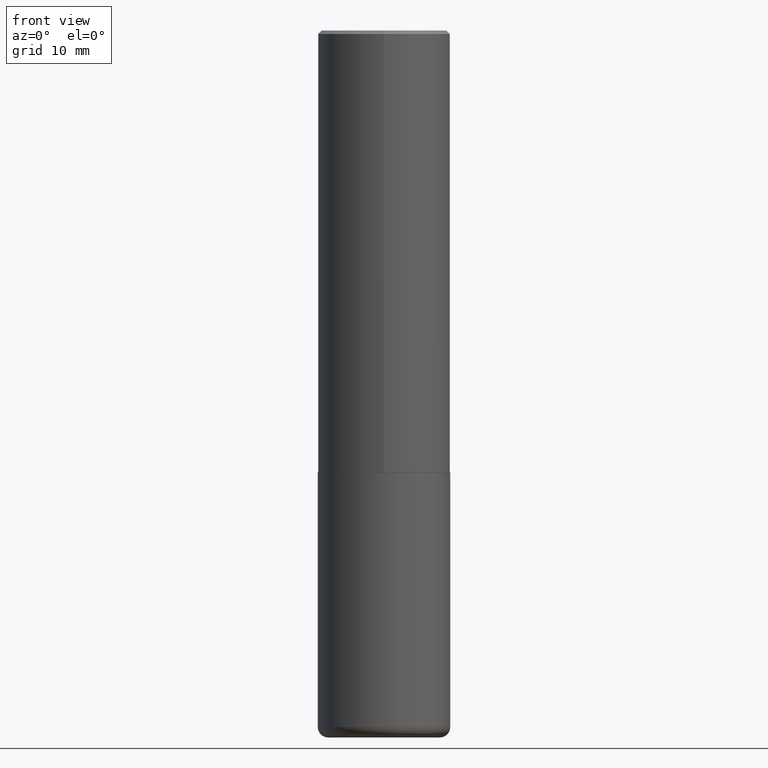
[diagram: clean part render]
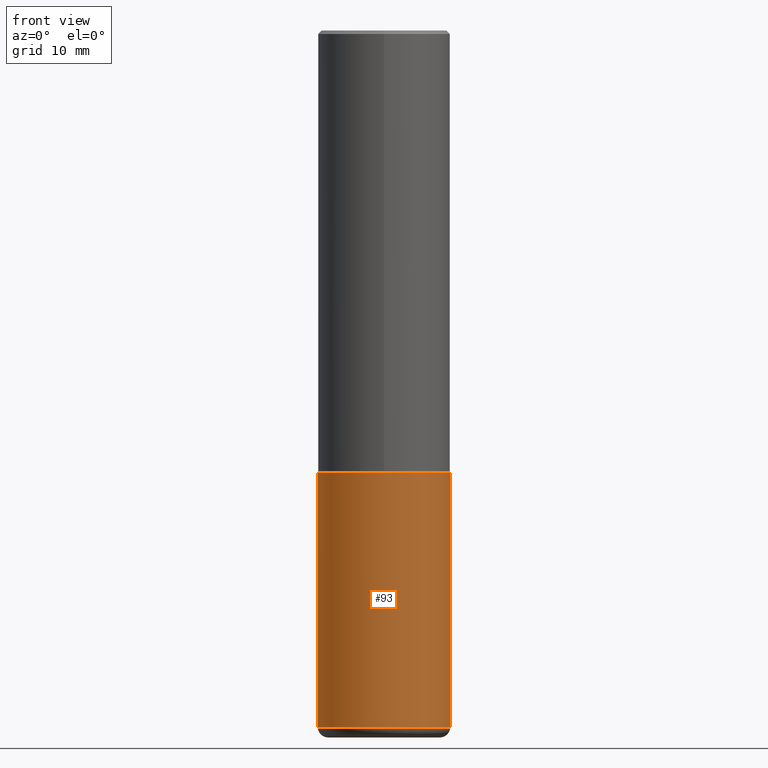
[diagram: same view with one face highlighted and labeled with its STEP entity id]
A machine part, front view. The second image highlights one B-rep face of the part: STEP entity #93.
In plain terms, the highlighted cylindrical surface (partial cylindrical patch) has radius 9.525 mm, axis along (-0, 0, 1).
Its self-contained STEP definition (entity closure, byte-faithful):
#1 = CIRCLE ( 'NONE', #268, 0.3750000000000000555 ) ;
#3 = ORIENTED_EDGE ( 'NONE', *, *, #190, .F. ) ;
#6 = DIRECTION ( 'NONE',  ( -2.445468806185136597E-29, 3.491481338843145583E-15, 1.000000000000000000 ) ) ;
#29 = LINE ( 'NONE', #99, #371 ) ;
#40 = CARTESIAN_POINT ( 'NONE',  ( -0.3750000000000000555, -8.578034651974553781E-15, -2.500000000000000000 ) ) ;
#86 = EDGE_CURVE ( 'NONE', #139, #311, #146, .T. ) ;
#93 = ADVANCED_FACE ( 'NONE', ( #335 ), #145, .T. ) ;
#95 = CARTESIAN_POINT ( 'NONE',  ( 0.3750000000000000555, -1.134731435124021338E-14, -2.500000000000000000 ) ) ;
#99 = CARTESIAN_POINT ( 'NONE',  ( -0.3750000000000000555, 2.664535259100376091E-15, -1.844600658845589598E-29 ) ) ;
#125 = DIRECTION ( 'NONE',  ( -2.445468806185136877E-29, 3.491481338843145188E-15, 1.000000000000000000 ) ) ;
#127 = DIRECTION ( 'NONE',  ( 1.000000000000000000, -6.982962677686266711E-15, 0.000000000000000000 ) ) ;
#135 = VERTEX_POINT ( 'NONE', #305 ) ;
#139 = VERTEX_POINT ( 'NONE', #40 ) ;
#141 = EDGE_CURVE ( 'NONE', #274, #135, #1, .T. ) ;
#145 = CYLINDRICAL_SURFACE ( 'NONE', #347, 0.3750000000000000555 ) ;
#146 = CIRCLE ( 'NONE', #208, 0.3750000000000000555 ) ;
#151 = ORIENTED_EDGE ( 'NONE', *, *, #141, .T. ) ;
#169 = DIRECTION ( 'NONE',  ( -2.445468806185136597E-29, 3.491481338843145583E-15, 1.000000000000000000 ) ) ;
#172 = CARTESIAN_POINT ( 'NONE',  ( 0.000000000000000000, 0.000000000000000000, 0.000000000000000000 ) ) ;
#190 = EDGE_CURVE ( 'NONE', #274, #139, #29, .T. ) ;
#204 = DIRECTION ( 'NONE',  ( 1.000000000000000000, -6.982962677686265922E-15, 4.876176775795935793E-29 ) ) ;
#208 = AXIS2_PLACEMENT_3D ( 'NONE', #329, #169, #244 ) ;
#244 = DIRECTION ( 'NONE',  ( 1.000000000000000000, -6.982962677686264344E-15, 0.000000000000000000 ) ) ;
#245 = ORIENTED_EDGE ( 'NONE', *, *, #293, .T. ) ;
#268 = AXIS2_PLACEMENT_3D ( 'NONE', #303, #6, #127 ) ;
#274 = VERTEX_POINT ( 'NONE', #349 ) ;
#276 = VECTOR ( 'NONE', #125, 39.37007874015748143 ) ;
#283 = CARTESIAN_POINT ( 'NONE',  ( 0.3750000000000000555, -2.618611004132350016E-15, 1.828566290923476203E-29 ) ) ;
#293 = EDGE_CURVE ( 'NONE', #135, #311, #409, .T. ) ;
#303 = CARTESIAN_POINT ( 'NONE',  ( 9.635147096369438236E-29, -1.375643647504199401E-14, -3.939999999999999947 ) ) ;
#305 = CARTESIAN_POINT ( 'NONE',  ( 0.3750000000000001110, -1.637504747917434403E-14, -3.939999999999999947 ) ) ;
#311 = VERTEX_POINT ( 'NONE', #95 ) ;
#329 = CARTESIAN_POINT ( 'NONE',  ( 6.113672015462842613E-29, -8.728703347107864943E-15, -2.500000000000000000 ) ) ;
#335 = FACE_OUTER_BOUND ( 'NONE', #360, .T. ) ;
#347 = AXIS2_PLACEMENT_3D ( 'NONE', #172, #366, #204 ) ;
#349 = CARTESIAN_POINT ( 'NONE',  ( -0.3750000000000001110, -1.109190121594161832E-14, -3.939999999999999947 ) ) ;
#351 = DIRECTION ( 'NONE',  ( -2.445468806185136877E-29, 3.491481338843145188E-15, 1.000000000000000000 ) ) ;
#360 = EDGE_LOOP ( 'NONE', ( #3, #151, #245, #386 ) ) ;
#366 = DIRECTION ( 'NONE',  ( -2.445468806185136597E-29, 3.491481338843145583E-15, 1.000000000000000000 ) ) ;
#371 = VECTOR ( 'NONE', #351, 39.37007874015748143 ) ;
#386 = ORIENTED_EDGE ( 'NONE', *, *, #86, .F. ) ;
#409 = LINE ( 'NONE', #283, #276 ) ;